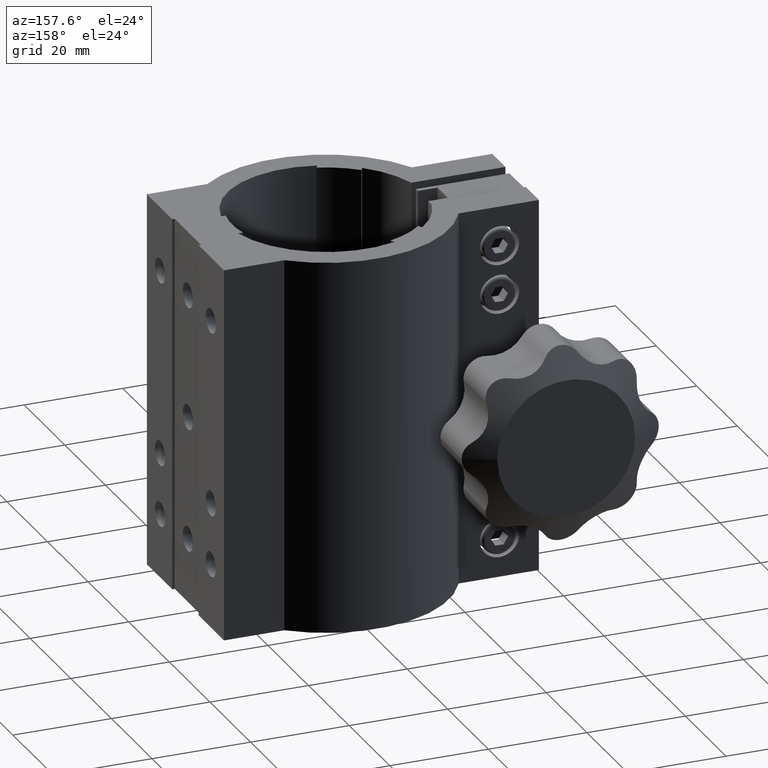
[diagram: clean part render]
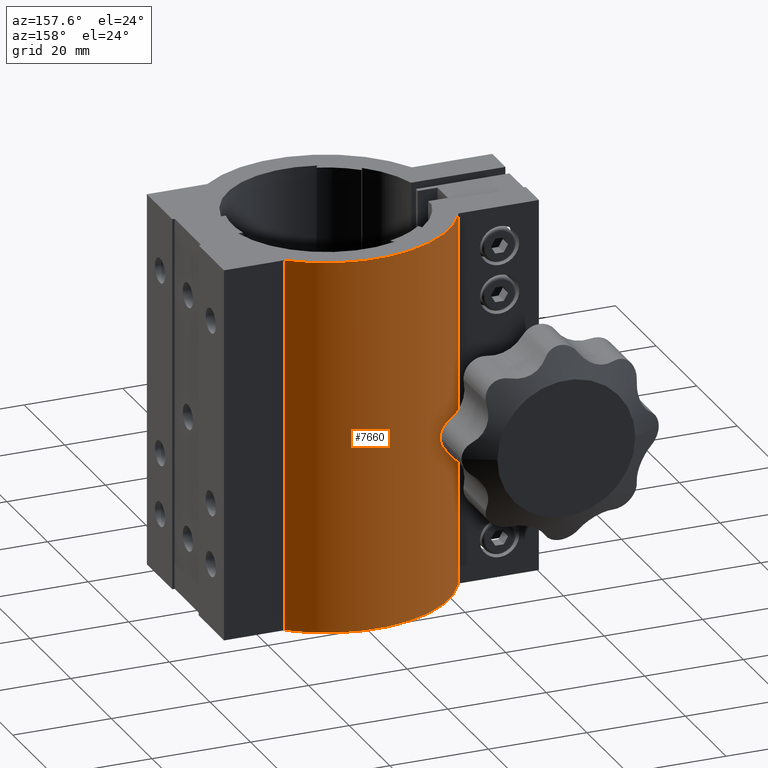
[diagram: same view with one face highlighted and labeled with its STEP entity id]
A machine part, auxiliary view. The second image highlights one B-rep face of the part: STEP entity #7660.
In plain terms, the highlighted cylindrical surface (partial cylindrical patch) has radius 25 mm, axis along (-0, 0, -1).
Its self-contained STEP definition (entity closure, byte-faithful):
#396 = CIRCLE ( 'NONE', #5002, 25.00000000000000000 ) ;
#1663 = CARTESIAN_POINT ( 'NONE',  ( 16.24807680927192200, 19.00000000000001800, 2.775557561562891400E-014 ) ) ;
#1710 = VERTEX_POINT ( 'NONE', #1663 ) ;
#2060 = DIRECTION ( 'NONE',  ( -1.000000000000000000, 2.958228394578794700E-031, 0.0000000000000000000 ) ) ;
#2225 = ORIENTED_EDGE ( 'NONE', *, *, #10099, .F. ) ;
#2549 = VERTEX_POINT ( 'NONE', #4532 ) ;
#3318 = DIRECTION ( 'NONE',  ( -5.925880749895129100E-031, 3.917341506883637700E-031, -1.000000000000000000 ) ) ;
#3643 = ORIENTED_EDGE ( 'NONE', *, *, #10211, .T. ) ;
#3810 = CARTESIAN_POINT ( 'NONE',  ( -22.19797288042310500, 11.50000000000012100, 76.00000000000001400 ) ) ;
#4459 = CARTESIAN_POINT ( 'NONE',  ( 16.24807680927192900, 19.00000000000001800, 76.00000000000004300 ) ) ;
#4532 = CARTESIAN_POINT ( 'NONE',  ( -22.19797288042310500, 11.50000000000012100, 76.00000000000001400 ) ) ;
#4723 = AXIS2_PLACEMENT_3D ( 'NONE', #9610, #3318, #2060 ) ;
#4904 = DIRECTION ( 'NONE',  ( 5.925880749895129100E-031, -3.917341506883637700E-031, 1.000000000000000000 ) ) ;
#5002 = AXIS2_PLACEMENT_3D ( 'NONE', #12414, #4904, #13682 ) ;
#5061 = DIRECTION ( 'NONE',  ( -5.925880749895129100E-031, 3.917341506883637700E-031, -1.000000000000000000 ) ) ;
#5220 = VERTEX_POINT ( 'NONE', #4459 ) ;
#5491 = DIRECTION ( 'NONE',  ( -5.925880749895129100E-031, 3.917341506883637700E-031, -1.000000000000000000 ) ) ;
#5779 = ORIENTED_EDGE ( 'NONE', *, *, #11978, .T. ) ;
#6641 = CYLINDRICAL_SURFACE ( 'NONE', #4723, 25.00000000000000000 ) ;
#7145 = CARTESIAN_POINT ( 'NONE',  ( 0.0000000000000000000, 0.0000000000000000000, 76.00000000000007100 ) ) ;
#7660 = ADVANCED_FACE ( 'NONE', ( #8168 ), #6641, .T. ) ;
#8168 = FACE_OUTER_BOUND ( 'NONE', #12262, .T. ) ;
#8365 = DIRECTION ( 'NONE',  ( 1.000000000000000000, -2.958228394578794700E-031, 0.0000000000000000000 ) ) ;
#8487 = LINE ( 'NONE', #3810, #14784 ) ;
#8643 = AXIS2_PLACEMENT_3D ( 'NONE', #7145, #15930, #8365 ) ;
#8688 = VECTOR ( 'NONE', #5491, 1000.000000000000000 ) ;
#9610 = CARTESIAN_POINT ( 'NONE',  ( 0.0000000000000000000, 0.0000000000000000000, 76.00000000000007100 ) ) ;
#10099 = EDGE_CURVE ( 'NONE', #2549, #14776, #8487, .T. ) ;
#10211 = EDGE_CURVE ( 'NONE', #5220, #1710, #14973, .T. ) ;
#11978 = EDGE_CURVE ( 'NONE', #1710, #14776, #396, .T. ) ;
#12262 = EDGE_LOOP ( 'NONE', ( #5779, #2225, #15391, #3643 ) ) ;
#12414 = CARTESIAN_POINT ( 'NONE',  ( 0.0000000000000000000, 0.0000000000000000000, 0.0000000000000000000 ) ) ;
#12708 = CARTESIAN_POINT ( 'NONE',  ( -22.19797288042310500, 11.50000000000012100, 2.775557561562891400E-014 ) ) ;
#13682 = DIRECTION ( 'NONE',  ( 1.000000000000000000, -2.958228394578794700E-031, 5.925880749895131700E-031 ) ) ;
#14278 = CARTESIAN_POINT ( 'NONE',  ( 16.24807680927192900, 19.00000000000001800, 76.00000000000004300 ) ) ;
#14393 = CIRCLE ( 'NONE', #8643, 25.00000000000000000 ) ;
#14776 = VERTEX_POINT ( 'NONE', #12708 ) ;
#14784 = VECTOR ( 'NONE', #5061, 1000.000000000000000 ) ;
#14973 = LINE ( 'NONE', #14278, #8688 ) ;
#15391 = ORIENTED_EDGE ( 'NONE', *, *, #16114, .F. ) ;
#15930 = DIRECTION ( 'NONE',  ( 5.925880749895129100E-031, -3.917341506883637700E-031, 1.000000000000000000 ) ) ;
#16114 = EDGE_CURVE ( 'NONE', #5220, #2549, #14393, .T. ) ;